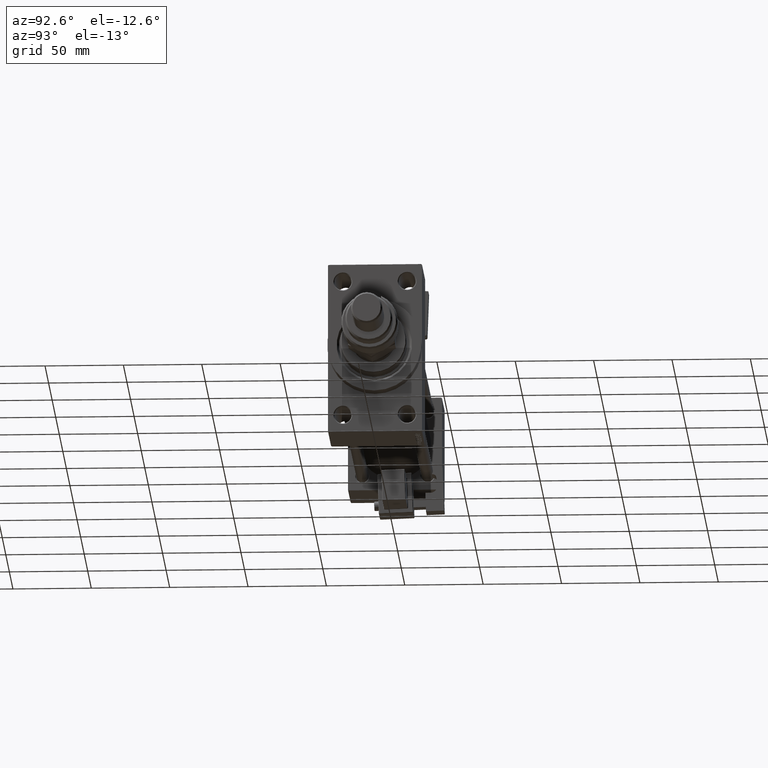
[diagram: clean part render]
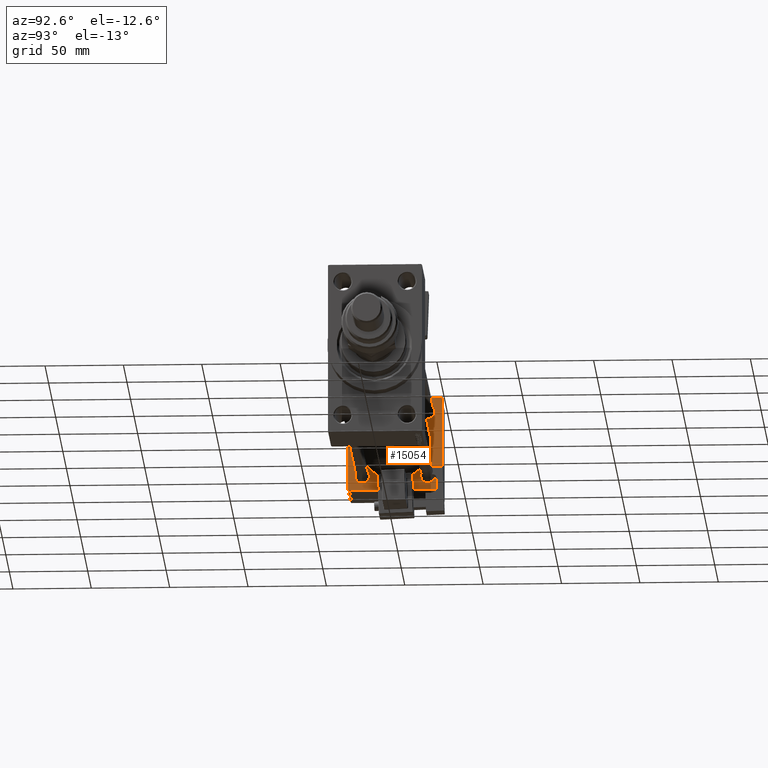
[diagram: same view with one face highlighted and labeled with its STEP entity id]
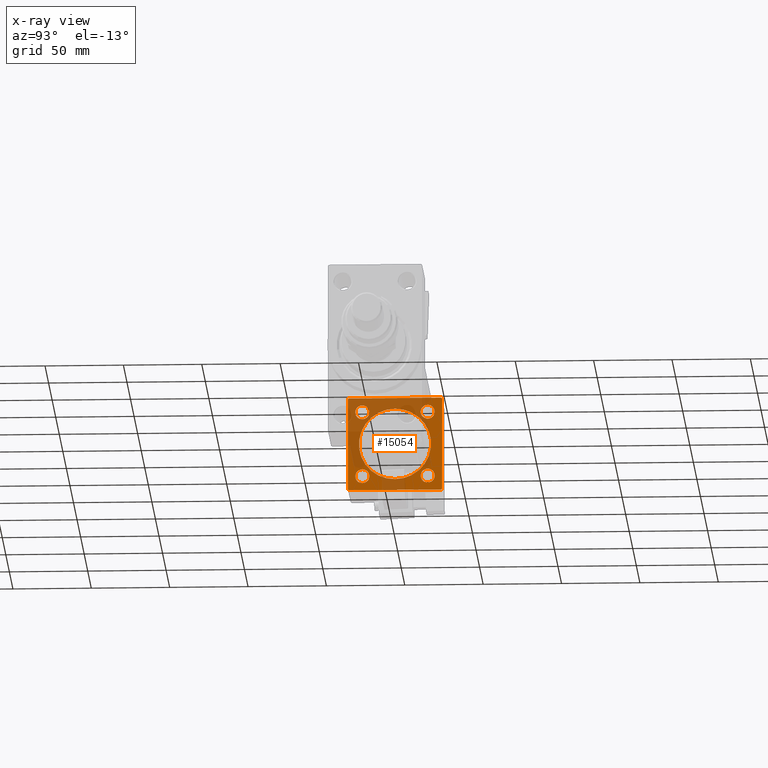
[diagram: x-ray of the same camera — body ghosted, the highlighted face saturated]
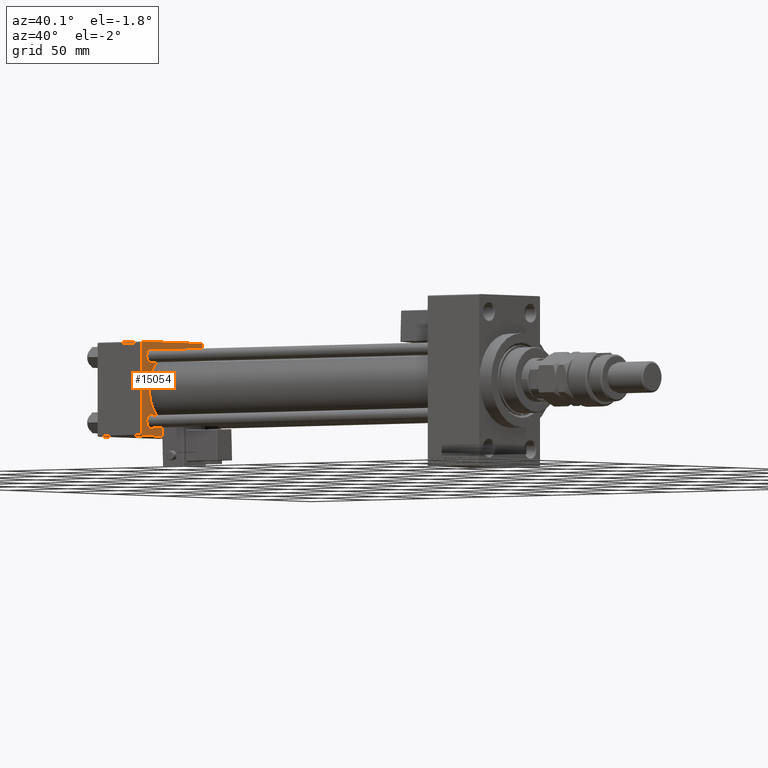
[diagram: same view with one face highlighted and labeled with its STEP entity id]
A machine part, auxiliary view. The second image highlights one B-rep face of the part: STEP entity #15054.
The next image is the same camera in x-ray: the body ghosted, the highlighted face saturated — about 50% of this face is hidden behind the body in this view.
A second angle (auxiliary view) of the same face is appended — the face is thin or edge-on in the first view.
In plain terms, the highlighted planar face has unit normal (-1, 0, 0).
Its self-contained STEP definition (entity closure, byte-faithful):
#549 = CARTESIAN_POINT ( 'NONE',  ( 37.00000000000000711, -2.602085213965210642E-15, 0.000000000000000000 ) ) ;
#585 = CARTESIAN_POINT ( 'NONE',  ( 37.00000000000000711, -2.602085213965210642E-15, 0.000000000000000000 ) ) ;
#795 = CARTESIAN_POINT ( 'NONE',  ( 37.00000000000000000, -29.50000000000000000, -30.00000000000000711 ) ) ;
#852 = DIRECTION ( 'NONE',  ( 1.000000000000000000, -0.000000000000000000, 0.000000000000000000 ) ) ;
#1868 = EDGE_CURVE ( 'NONE', #11942, #33862, #46895, .T. ) ;
#3028 = PLANE ( 'NONE',  #31164 ) ;
#3182 = DIRECTION ( 'NONE',  ( 0.000000000000000000, 0.000000000000000000, 1.000000000000000000 ) ) ;
#3816 = LINE ( 'NONE', #20043, #25195 ) ;
#3818 = VECTOR ( 'NONE', #52072, 1000.000000000000000 ) ;
#3973 = CIRCLE ( 'NONE', #46452, 4.499999999999948486 ) ;
#4013 = VERTEX_POINT ( 'NONE', #795 ) ;
#4114 = ORIENTED_EDGE ( 'NONE', *, *, #30312, .T. ) ;
#4266 = AXIS2_PLACEMENT_3D ( 'NONE', #16827, #12827, #36760 ) ;
#5477 = ORIENTED_EDGE ( 'NONE', *, *, #22631, .T. ) ;
#6087 = CARTESIAN_POINT ( 'NONE',  ( 37.00000000000000000, 20.84999999999999787, -20.85000000000000142 ) ) ;
#6194 = CARTESIAN_POINT ( 'NONE',  ( 37.00000000000000000, -20.84999999999999076, 20.85000000000000497 ) ) ;
#6238 = EDGE_LOOP ( 'NONE', ( #21358, #6704 ) ) ;
#6688 = CARTESIAN_POINT ( 'NONE',  ( 37.00000000000000000, -20.84999999999999076, -16.35000000000005471 ) ) ;
#6704 = ORIENTED_EDGE ( 'NONE', *, *, #33197, .T. ) ;
#6835 = ORIENTED_EDGE ( 'NONE', *, *, #43698, .F. ) ;
#6911 = CARTESIAN_POINT ( 'NONE',  ( 37.00000000000000000, 20.84999999999999787, 20.85000000000000142 ) ) ;
#7028 = FACE_OUTER_BOUND ( 'NONE', #35739, .T. ) ;
#7467 = AXIS2_PLACEMENT_3D ( 'NONE', #18120, #26615, #34583 ) ;
#8121 = EDGE_CURVE ( 'NONE', #39319, #4013, #39863, .T. ) ;
#8278 = DIRECTION ( 'NONE',  ( 0.000000000000000000, 0.000000000000000000, 1.000000000000000000 ) ) ;
#8282 = DIRECTION ( 'NONE',  ( 0.000000000000000000, -1.000000000000000000, -1.156482317317871725E-16 ) ) ;
#8418 = CIRCLE ( 'NONE', #42383, 4.499999999999948486 ) ;
#8577 = DIRECTION ( 'NONE',  ( 0.000000000000000000, 0.000000000000000000, 1.000000000000000000 ) ) ;
#8827 = DIRECTION ( 'NONE',  ( 0.000000000000000000, 0.000000000000000000, 1.000000000000000000 ) ) ;
#8892 = CARTESIAN_POINT ( 'NONE',  ( 37.00000000000000000, 20.84999999999999787, -25.34999999999994813 ) ) ;
#9639 = ORIENTED_EDGE ( 'NONE', *, *, #14242, .T. ) ;
#10142 = EDGE_CURVE ( 'NONE', #18291, #47716, #36199, .T. ) ;
#10602 = VERTEX_POINT ( 'NONE', #12630 ) ;
#11427 = VERTEX_POINT ( 'NONE', #44029 ) ;
#11814 = FACE_BOUND ( 'NONE', #28351, .T. ) ;
#11942 = VERTEX_POINT ( 'NONE', #6688 ) ;
#12134 = DIRECTION ( 'NONE',  ( 0.000000000000000000, 0.000000000000000000, 1.000000000000000000 ) ) ;
#12630 = CARTESIAN_POINT ( 'NONE',  ( 37.00000000000000000, 20.84999999999999787, 25.34999999999994813 ) ) ;
#12784 = ORIENTED_EDGE ( 'NONE', *, *, #41133, .T. ) ;
#12827 = DIRECTION ( 'NONE',  ( -1.000000000000000000, 0.000000000000000000, -0.000000000000000000 ) ) ;
#12922 = ORIENTED_EDGE ( 'NONE', *, *, #41494, .T. ) ;
#13040 = CARTESIAN_POINT ( 'NONE',  ( 37.00000000000000000, 20.84999999999999787, 16.35000000000005116 ) ) ;
#13071 = CARTESIAN_POINT ( 'NONE',  ( 37.00000000000000000, 20.84999999999999787, -20.85000000000000142 ) ) ;
#13096 = CARTESIAN_POINT ( 'NONE',  ( 37.00000000000000000, -30.00000000000000000, 29.99999999999999289 ) ) ;
#14187 = ORIENTED_EDGE ( 'NONE', *, *, #14804, .T. ) ;
#14242 = EDGE_CURVE ( 'NONE', #49138, #48034, #3816, .T. ) ;
#14339 = EDGE_CURVE ( 'NONE', #28515, #35424, #37559, .T. ) ;
#14709 = AXIS2_PLACEMENT_3D ( 'NONE', #13071, #32505, #8827 ) ;
#14804 = EDGE_CURVE ( 'NONE', #39319, #33455, #43061, .T. ) ;
#15054 = ADVANCED_FACE ( 'NONE', ( #34948, #26981, #19251, #43202, #11814, #7028 ), #3028, .F. ) ;
#15393 = DIRECTION ( 'NONE',  ( -1.000000000000000000, 0.000000000000000000, -0.000000000000000000 ) ) ;
#15790 = DIRECTION ( 'NONE',  ( -1.000000000000000000, 0.000000000000000000, -0.000000000000000000 ) ) ;
#15867 = CARTESIAN_POINT ( 'NONE',  ( 37.00000000000000000, -20.84999999999999076, 16.35000000000005471 ) ) ;
#16453 = EDGE_CURVE ( 'NONE', #50654, #42817, #39717, .T. ) ;
#16612 = CARTESIAN_POINT ( 'NONE',  ( 37.00000000000000000, -30.00000000000000000, 29.49999999999999289 ) ) ;
#16827 = CARTESIAN_POINT ( 'NONE',  ( 37.00000000000000000, -20.84999999999999076, 20.85000000000000497 ) ) ;
#17445 = ORIENTED_EDGE ( 'NONE', *, *, #16453, .T. ) ;
#17647 = CIRCLE ( 'NONE', #7467, 4.499999999999948486 ) ;
#17920 = ORIENTED_EDGE ( 'NONE', *, *, #1868, .T. ) ;
#18120 = CARTESIAN_POINT ( 'NONE',  ( 37.00000000000000000, 20.84999999999999787, 20.85000000000000142 ) ) ;
#18267 = EDGE_CURVE ( 'NONE', #11427, #28515, #21395, .T. ) ;
#18291 = VERTEX_POINT ( 'NONE', #8892 ) ;
#18605 = CARTESIAN_POINT ( 'NONE',  ( 37.00000000000000000, 29.99999999999999289, -29.50000000000000000 ) ) ;
#19251 = FACE_BOUND ( 'NONE', #23829, .T. ) ;
#19719 = LINE ( 'NONE', #35927, #44634 ) ;
#20009 = VERTEX_POINT ( 'NONE', #43999 ) ;
#20043 = CARTESIAN_POINT ( 'NONE',  ( 37.00000000000000000, 29.49999999999999289, 30.00000000000000000 ) ) ;
#20650 = AXIS2_PLACEMENT_3D ( 'NONE', #585, #852, #8577 ) ;
#21269 = CARTESIAN_POINT ( 'NONE',  ( 37.00000000000000711, 2.146024240737016609E-16, -23.00000000000000000 ) ) ;
#21358 = ORIENTED_EDGE ( 'NONE', *, *, #35036, .T. ) ;
#21395 = LINE ( 'NONE', #16612, #35713 ) ;
#21516 = DIRECTION ( 'NONE',  ( 0.000000000000000000, 0.000000000000000000, 1.000000000000000000 ) ) ;
#22569 = EDGE_CURVE ( 'NONE', #20009, #23033, #46156, .T. ) ;
#22631 = EDGE_CURVE ( 'NONE', #47716, #18291, #24069, .T. ) ;
#23033 = VERTEX_POINT ( 'NONE', #21269 ) ;
#23173 = DIRECTION ( 'NONE',  ( 0.000000000000000000, 0.000000000000000000, -1.000000000000000000 ) ) ;
#23494 = CIRCLE ( 'NONE', #29330, 23.00000000000000000 ) ;
#23829 = EDGE_LOOP ( 'NONE', ( #17445, #12922 ) ) ;
#23993 = AXIS2_PLACEMENT_3D ( 'NONE', #42248, #33466, #21516 ) ;
#24069 = CIRCLE ( 'NONE', #14709, 4.499999999999948486 ) ;
#24892 = DIRECTION ( 'NONE',  ( -1.000000000000000000, 0.000000000000000000, -0.000000000000000000 ) ) ;
#25121 = CARTESIAN_POINT ( 'NONE',  ( 37.00000000000000000, 20.84999999999999787, -16.35000000000005116 ) ) ;
#25195 = VECTOR ( 'NONE', #36258, 1000.000000000000114 ) ;
#25607 = DIRECTION ( 'NONE',  ( 0.000000000000000000, 0.000000000000000000, -1.000000000000000000 ) ) ;
#26615 = DIRECTION ( 'NONE',  ( -1.000000000000000000, 0.000000000000000000, -0.000000000000000000 ) ) ;
#26894 = VECTOR ( 'NONE', #25607, 1000.000000000000000 ) ;
#26931 = VECTOR ( 'NONE', #47565, 999.9999999999998863 ) ;
#26981 = FACE_BOUND ( 'NONE', #27568, .T. ) ;
#27174 = LINE ( 'NONE', #35129, #33881 ) ;
#27568 = EDGE_LOOP ( 'NONE', ( #40506, #5477 ) ) ;
#28351 = EDGE_LOOP ( 'NONE', ( #32484, #6835 ) ) ;
#28515 = VERTEX_POINT ( 'NONE', #39440 ) ;
#28680 = AXIS2_PLACEMENT_3D ( 'NONE', #6194, #29600, #50073 ) ;
#28957 = CARTESIAN_POINT ( 'NONE',  ( 37.00000000000000000, 29.99999999999999289, -29.50000000000000000 ) ) ;
#29290 = CARTESIAN_POINT ( 'NONE',  ( 37.00000000000000000, 29.49999999999999289, 30.00000000000000000 ) ) ;
#29330 = AXIS2_PLACEMENT_3D ( 'NONE', #549, #49718, #8278 ) ;
#29600 = DIRECTION ( 'NONE',  ( -1.000000000000000000, 0.000000000000000000, -0.000000000000000000 ) ) ;
#30312 = EDGE_CURVE ( 'NONE', #48034, #11427, #19719, .T. ) ;
#30381 = VERTEX_POINT ( 'NONE', #13040 ) ;
#31164 = AXIS2_PLACEMENT_3D ( 'NONE', #47175, #15790, #35467 ) ;
#31569 = ORIENTED_EDGE ( 'NONE', *, *, #40882, .F. ) ;
#31703 = DIRECTION ( 'NONE',  ( 0.000000000000000000, 0.7071067811865474617, -0.7071067811865474617 ) ) ;
#31942 = AXIS2_PLACEMENT_3D ( 'NONE', #6087, #39283, #38770 ) ;
#32274 = ORIENTED_EDGE ( 'NONE', *, *, #8121, .F. ) ;
#32345 = CARTESIAN_POINT ( 'NONE',  ( 37.00000000000000000, -20.84999999999999076, -20.85000000000000497 ) ) ;
#32484 = ORIENTED_EDGE ( 'NONE', *, *, #22569, .F. ) ;
#32505 = DIRECTION ( 'NONE',  ( -1.000000000000000000, 0.000000000000000000, -0.000000000000000000 ) ) ;
#33197 = EDGE_CURVE ( 'NONE', #10602, #30381, #3973, .T. ) ;
#33455 = VERTEX_POINT ( 'NONE', #28957 ) ;
#33466 = DIRECTION ( 'NONE',  ( -1.000000000000000000, 0.000000000000000000, -0.000000000000000000 ) ) ;
#33612 = DIRECTION ( 'NONE',  ( -0.000000000000000000, -0.7071067811865474617, -0.7071067811865474617 ) ) ;
#33862 = VERTEX_POINT ( 'NONE', #46097 ) ;
#33881 = VECTOR ( 'NONE', #23173, 1000.000000000000000 ) ;
#34583 = DIRECTION ( 'NONE',  ( 0.000000000000000000, 0.000000000000000000, 1.000000000000000000 ) ) ;
#34948 = FACE_BOUND ( 'NONE', #43797, .T. ) ;
#35036 = EDGE_CURVE ( 'NONE', #30381, #10602, #17647, .T. ) ;
#35129 = CARTESIAN_POINT ( 'NONE',  ( 37.00000000000000000, 29.99999999999999289, 30.00000000000000000 ) ) ;
#35424 = VERTEX_POINT ( 'NONE', #50223 ) ;
#35467 = DIRECTION ( 'NONE',  ( -0.000000000000000000, 0.000000000000000000, 1.000000000000000000 ) ) ;
#35687 = CIRCLE ( 'NONE', #4266, 4.499999999999948486 ) ;
#35713 = VECTOR ( 'NONE', #33612, 1000.000000000000114 ) ;
#35739 = EDGE_LOOP ( 'NONE', ( #32274, #14187, #31569, #9639, #4114, #42178, #37045, #49803 ) ) ;
#35856 = CARTESIAN_POINT ( 'NONE',  ( 37.00000000000000000, 29.99999999999999289, -30.00000000000000000 ) ) ;
#35927 = CARTESIAN_POINT ( 'NONE',  ( 37.00000000000000000, 29.99999999999999289, 30.00000000000000000 ) ) ;
#36199 = CIRCLE ( 'NONE', #31942, 4.499999999999948486 ) ;
#36258 = DIRECTION ( 'NONE',  ( 0.000000000000000000, -0.7071067811865474617, 0.7071067811865474617 ) ) ;
#36760 = DIRECTION ( 'NONE',  ( 0.000000000000000000, 0.000000000000000000, 1.000000000000000000 ) ) ;
#37045 = ORIENTED_EDGE ( 'NONE', *, *, #14339, .T. ) ;
#37080 = VECTOR ( 'NONE', #31703, 1000.000000000000114 ) ;
#37358 = CARTESIAN_POINT ( 'NONE',  ( 37.00000000000000000, 29.49999999999997868, -30.00000000000000000 ) ) ;
#37559 = LINE ( 'NONE', #13096, #26894 ) ;
#38770 = DIRECTION ( 'NONE',  ( 0.000000000000000000, 0.000000000000000000, 1.000000000000000000 ) ) ;
#39283 = DIRECTION ( 'NONE',  ( -1.000000000000000000, 0.000000000000000000, -0.000000000000000000 ) ) ;
#39319 = VERTEX_POINT ( 'NONE', #37358 ) ;
#39440 = CARTESIAN_POINT ( 'NONE',  ( 37.00000000000000000, -30.00000000000000000, 29.49999999999999289 ) ) ;
#39695 = LINE ( 'NONE', #43681, #37080 ) ;
#39717 = CIRCLE ( 'NONE', #28680, 4.499999999999948486 ) ;
#39863 = LINE ( 'NONE', #35856, #3818 ) ;
#40506 = ORIENTED_EDGE ( 'NONE', *, *, #10142, .T. ) ;
#40882 = EDGE_CURVE ( 'NONE', #49138, #33455, #27174, .T. ) ;
#41133 = EDGE_CURVE ( 'NONE', #33862, #11942, #8418, .T. ) ;
#41494 = EDGE_CURVE ( 'NONE', #42817, #50654, #35687, .T. ) ;
#42178 = ORIENTED_EDGE ( 'NONE', *, *, #18267, .T. ) ;
#42248 = CARTESIAN_POINT ( 'NONE',  ( 37.00000000000000000, -20.84999999999999076, -20.85000000000000497 ) ) ;
#42383 = AXIS2_PLACEMENT_3D ( 'NONE', #32345, #24892, #12134 ) ;
#42817 = VERTEX_POINT ( 'NONE', #49711 ) ;
#43061 = LINE ( 'NONE', #18605, #26931 ) ;
#43202 = FACE_BOUND ( 'NONE', #6238, .T. ) ;
#43681 = CARTESIAN_POINT ( 'NONE',  ( 37.00000000000000000, -29.50000000000001066, -30.00000000000000711 ) ) ;
#43698 = EDGE_CURVE ( 'NONE', #23033, #20009, #23494, .T. ) ;
#43797 = EDGE_LOOP ( 'NONE', ( #12784, #17920 ) ) ;
#43999 = CARTESIAN_POINT ( 'NONE',  ( 37.00000000000000711, -2.602085213965210642E-15, 23.00000000000000000 ) ) ;
#44029 = CARTESIAN_POINT ( 'NONE',  ( 37.00000000000000000, -29.49999999999998579, 29.99999999999999289 ) ) ;
#44634 = VECTOR ( 'NONE', #8282, 1000.000000000000000 ) ;
#44958 = CARTESIAN_POINT ( 'NONE',  ( 37.00000000000000000, 29.99999999999999289, 29.50000000000000000 ) ) ;
#46097 = CARTESIAN_POINT ( 'NONE',  ( 37.00000000000000000, -20.84999999999999076, -25.34999999999995168 ) ) ;
#46156 = CIRCLE ( 'NONE', #20650, 23.00000000000000000 ) ;
#46452 = AXIS2_PLACEMENT_3D ( 'NONE', #6911, #15393, #3182 ) ;
#46526 = EDGE_CURVE ( 'NONE', #35424, #4013, #39695, .T. ) ;
#46895 = CIRCLE ( 'NONE', #23993, 4.499999999999948486 ) ;
#47175 = CARTESIAN_POINT ( 'NONE',  ( 37.00000000000000000, 0.000000000000000000, 0.000000000000000000 ) ) ;
#47565 = DIRECTION ( 'NONE',  ( -0.000000000000000000, 0.7071067811865574537, 0.7071067811865376918 ) ) ;
#47716 = VERTEX_POINT ( 'NONE', #25121 ) ;
#48034 = VERTEX_POINT ( 'NONE', #29290 ) ;
#49138 = VERTEX_POINT ( 'NONE', #44958 ) ;
#49711 = CARTESIAN_POINT ( 'NONE',  ( 37.00000000000000000, -20.84999999999999076, 25.34999999999995168 ) ) ;
#49718 = DIRECTION ( 'NONE',  ( 1.000000000000000000, -0.000000000000000000, 0.000000000000000000 ) ) ;
#49803 = ORIENTED_EDGE ( 'NONE', *, *, #46526, .T. ) ;
#50073 = DIRECTION ( 'NONE',  ( 0.000000000000000000, 0.000000000000000000, 1.000000000000000000 ) ) ;
#50223 = CARTESIAN_POINT ( 'NONE',  ( 37.00000000000000000, -30.00000000000000000, -29.50000000000001776 ) ) ;
#50654 = VERTEX_POINT ( 'NONE', #15867 ) ;
#52072 = DIRECTION ( 'NONE',  ( 0.000000000000000000, -1.000000000000000000, -1.156482317317871725E-16 ) ) ;